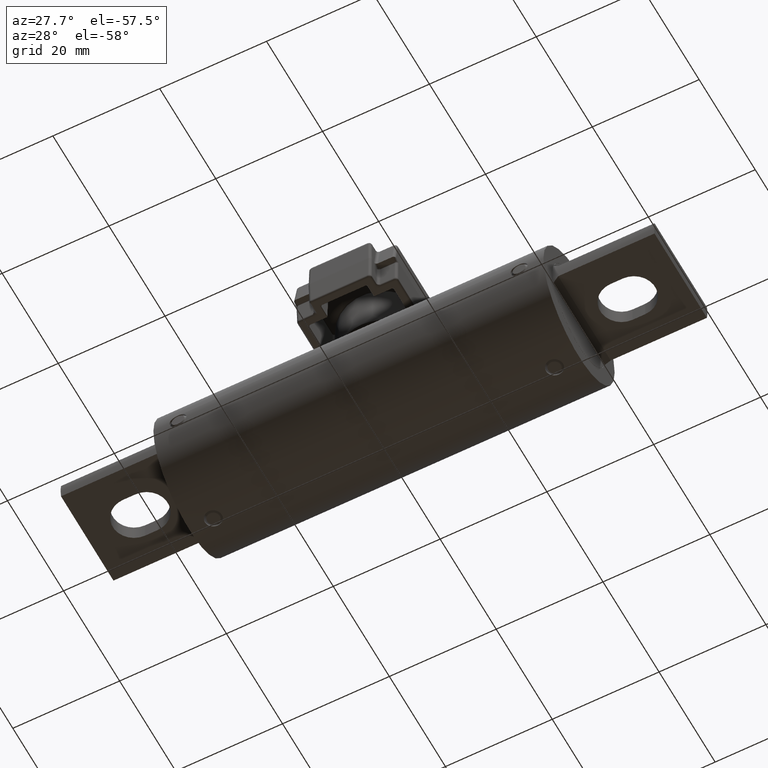
[diagram: clean part render]
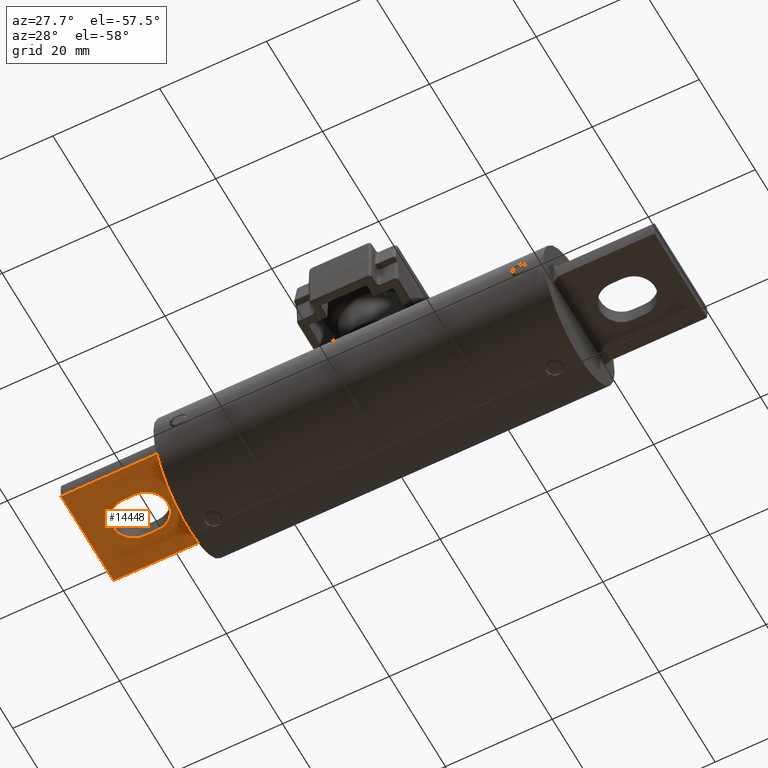
[diagram: same view with one face highlighted and labeled with its STEP entity id]
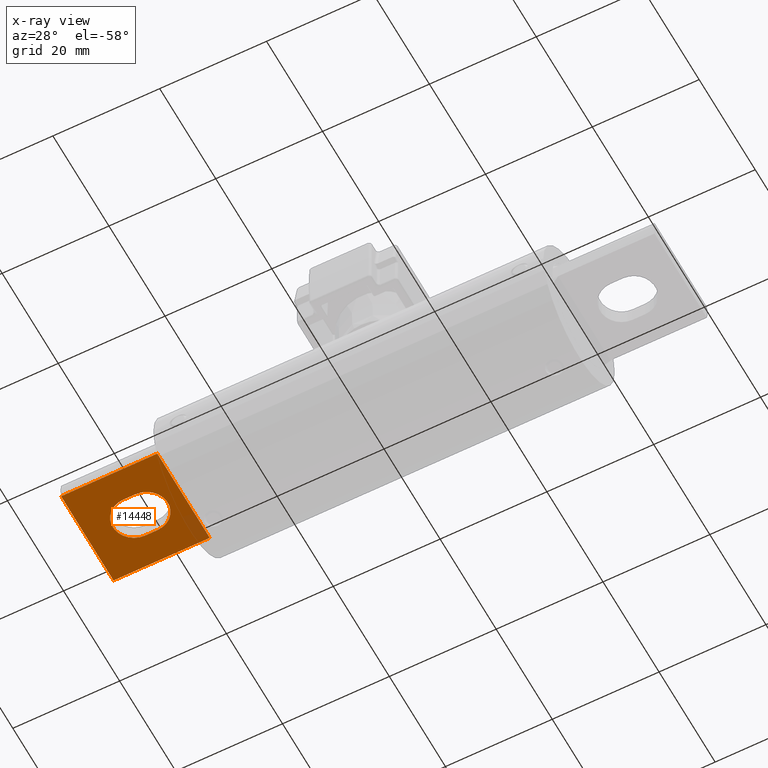
[diagram: x-ray of the same camera — body ghosted, the highlighted face saturated]
A machine part, auxiliary view. The second image highlights one B-rep face of the part: STEP entity #14448.
The next image is the same camera in x-ray: the body ghosted, the highlighted face saturated — about 4% of this face is hidden behind the body in this view.
In plain terms, the highlighted planar face has unit normal (0, 0, -1).
Its self-contained STEP definition (entity closure, byte-faithful):
#247 = CARTESIAN_POINT ( 'NONE',  ( -2.187500000000000000, 0.3682336214959193700, -0.06250000000000029100 ) ) ;
#772 = EDGE_CURVE ( 'NONE', #30217, #21579, #13675, .T. ) ;
#3127 = VECTOR ( 'NONE', #3204, 39.37007874015748100 ) ;
#3184 = DIRECTION ( 'NONE',  ( 1.000000000000000000, 1.106559379273115200E-017, 2.775557561562891400E-016 ) ) ;
#3204 = DIRECTION ( 'NONE',  ( -1.000000000000000000, -3.782494639088959400E-016, -2.775557561562891400E-016 ) ) ;
#3404 = VERTEX_POINT ( 'NONE', #247 ) ;
#3502 = EDGE_CURVE ( 'NONE', #13644, #13494, #11301, .T. ) ;
#3596 = EDGE_LOOP ( 'NONE', ( #10112, #24504, #34595, #35265 ) ) ;
#3773 = CARTESIAN_POINT ( 'NONE',  ( -1.750000000000000200, -0.1560000000000000300, -0.06250000000000016700 ) ) ;
#3992 = LINE ( 'NONE', #11315, #36004 ) ;
#5771 = DIRECTION ( 'NONE',  ( 2.775557561562891400E-016, 4.556807103217502100E-017, -1.000000000000000000 ) ) ;
#6167 = CARTESIAN_POINT ( 'NONE',  ( -1.843000000000000000, -0.1560000000000000300, -0.06250000000000020800 ) ) ;
#7194 = CARTESIAN_POINT ( 'NONE',  ( -2.187500000000000000, -0.3682336214959193700, -0.06250000000000029100 ) ) ;
#7975 = ORIENTED_EDGE ( 'NONE', *, *, #16564, .T. ) ;
#9891 = DIRECTION ( 'NONE',  ( -1.090464637520307900E-017, -1.000000000000000000, 4.915383314832314900E-017 ) ) ;
#10013 = CARTESIAN_POINT ( 'NONE',  ( -2.187500000000000000, -9.628288124190966600E-018, -0.06250000000000029100 ) ) ;
#10106 = VECTOR ( 'NONE', #3184, 39.37007874015748100 ) ;
#10112 = ORIENTED_EDGE ( 'NONE', *, *, #17331, .F. ) ;
#11301 = LINE ( 'NONE', #25270, #3127 ) ;
#11315 = CARTESIAN_POINT ( 'NONE',  ( -2.187500000000000000, -0.3682336214959193700, -0.06250000000000029100 ) ) ;
#12361 = FACE_BOUND ( 'NONE', #3596, .T. ) ;
#13217 = CARTESIAN_POINT ( 'NONE',  ( -1.843000000000000000, -5.816191062595087100E-018, -0.06250000000000020800 ) ) ;
#13494 = VERTEX_POINT ( 'NONE', #6167 ) ;
#13644 = VERTEX_POINT ( 'NONE', #3773 ) ;
#13675 = LINE ( 'NONE', #24229, #29238 ) ;
#14448 = ADVANCED_FACE ( 'NONE', ( #12361, #27940 ), #23868, .T. ) ;
#15094 = LINE ( 'NONE', #10013, #22390 ) ;
#15201 = EDGE_CURVE ( 'NONE', #3404, #18721, #15094, .T. ) ;
#15856 = ORIENTED_EDGE ( 'NONE', *, *, #772, .T. ) ;
#16319 = DIRECTION ( 'NONE',  ( -1.000000000000000000, -1.106559379273115800E-017, -2.736225955192572600E-016 ) ) ;
#16564 = EDGE_CURVE ( 'NONE', #3404, #30217, #18386, .T. ) ;
#17331 = EDGE_CURVE ( 'NONE', #26740, #13644, #21255, .T. ) ;
#17868 = EDGE_CURVE ( 'NONE', #32019, #26740, #28509, .T. ) ;
#18230 = DIRECTION ( 'NONE',  ( -2.220446049250313100E-016, 4.556807103217501400E-017, -1.000000000000000000 ) ) ;
#18322 = EDGE_CURVE ( 'NONE', #13494, #32019, #31833, .T. ) ;
#18386 = LINE ( 'NONE', #24912, #10106 ) ;
#18721 = VERTEX_POINT ( 'NONE', #7194 ) ;
#21163 = DIRECTION ( 'NONE',  ( -1.090464637520307900E-017, -1.000000000000000000, 4.915383314832314900E-017 ) ) ;
#21255 = CIRCLE ( 'NONE', #39274, 0.1559999999999999200 ) ;
#21579 = VERTEX_POINT ( 'NONE', #27202 ) ;
#22390 = VECTOR ( 'NONE', #9891, 39.37007874015748100 ) ;
#23868 = PLANE ( 'NONE',  #35271 ) ;
#24229 = CARTESIAN_POINT ( 'NONE',  ( -1.477500000000000300, -0.3682336214959193700, -0.06250000000000006900 ) ) ;
#24442 = CARTESIAN_POINT ( 'NONE',  ( 0.01543464409953363600, 0.3734999999999998300, -0.06249999999999969500 ) ) ;
#24494 = EDGE_CURVE ( 'NONE', #21579, #18721, #3992, .T. ) ;
#24504 = ORIENTED_EDGE ( 'NONE', *, *, #17868, .F. ) ;
#24912 = CARTESIAN_POINT ( 'NONE',  ( -2.187500000000000000, 0.3682336214959193700, -0.06250000000000029100 ) ) ;
#25270 = CARTESIAN_POINT ( 'NONE',  ( -1.750000000000000200, -0.1560000000000000000, -0.06250000000000016700 ) ) ;
#26740 = VERTEX_POINT ( 'NONE', #33092 ) ;
#27202 = CARTESIAN_POINT ( 'NONE',  ( -1.477500000000000300, -0.3682336214959193700, -0.06250000000000006900 ) ) ;
#27533 = DIRECTION ( 'NONE',  ( -1.000000000000000000, -1.106559379273115200E-017, -2.775557561562891400E-016 ) ) ;
#27940 = FACE_OUTER_BOUND ( 'NONE', #32021, .T. ) ;
#28421 = AXIS2_PLACEMENT_3D ( 'NONE', #13217, #34916, #16319 ) ;
#28509 = LINE ( 'NONE', #29118, #36762 ) ;
#28934 = ORIENTED_EDGE ( 'NONE', *, *, #24494, .T. ) ;
#29118 = CARTESIAN_POINT ( 'NONE',  ( -1.750000000000000200, 0.1560000000000000000, -0.06250000000000016700 ) ) ;
#29238 = VECTOR ( 'NONE', #21163, 39.37007874015748100 ) ;
#29577 = CARTESIAN_POINT ( 'NONE',  ( -1.843000000000000000, 0.1560000000000000300, -0.06250000000000020800 ) ) ;
#29920 = DIRECTION ( 'NONE',  ( -1.000000000000000000, -1.106559379273115200E-017, -2.775557561562891400E-016 ) ) ;
#30217 = VERTEX_POINT ( 'NONE', #35950 ) ;
#31833 = CIRCLE ( 'NONE', #28421, 0.1559999999999999200 ) ;
#31897 = DIRECTION ( 'NONE',  ( 1.000000000000000000, -3.561182763234334600E-016, 2.775557561562891400E-016 ) ) ;
#32019 = VERTEX_POINT ( 'NONE', #29577 ) ;
#32021 = EDGE_LOOP ( 'NONE', ( #7975, #15856, #28934, #35819 ) ) ;
#33092 = CARTESIAN_POINT ( 'NONE',  ( -1.750000000000000200, 0.1560000000000000000, -0.06250000000000016700 ) ) ;
#34595 = ORIENTED_EDGE ( 'NONE', *, *, #18322, .F. ) ;
#34916 = DIRECTION ( 'NONE',  ( -2.220446049250313100E-016, 4.556807103217501400E-017, -1.000000000000000000 ) ) ;
#35265 = ORIENTED_EDGE ( 'NONE', *, *, #3502, .F. ) ;
#35271 = AXIS2_PLACEMENT_3D ( 'NONE', #24442, #5771, #27533 ) ;
#35819 = ORIENTED_EDGE ( 'NONE', *, *, #15201, .F. ) ;
#35950 = CARTESIAN_POINT ( 'NONE',  ( -1.477500000000000300, 0.3682336214959193700, -0.06250000000000012500 ) ) ;
#36004 = VECTOR ( 'NONE', #29920, 39.37007874015748100 ) ;
#36762 = VECTOR ( 'NONE', #31897, 39.37007874015748100 ) ;
#36880 = CARTESIAN_POINT ( 'NONE',  ( -1.750000000000000200, -4.787090839871092700E-018, -0.06250000000000016700 ) ) ;
#39274 = AXIS2_PLACEMENT_3D ( 'NONE', #36880, #18230, #40031 ) ;
#40031 = DIRECTION ( 'NONE',  ( -1.000000000000000000, -1.106559379273115800E-017, -2.736225955192572600E-016 ) ) ;